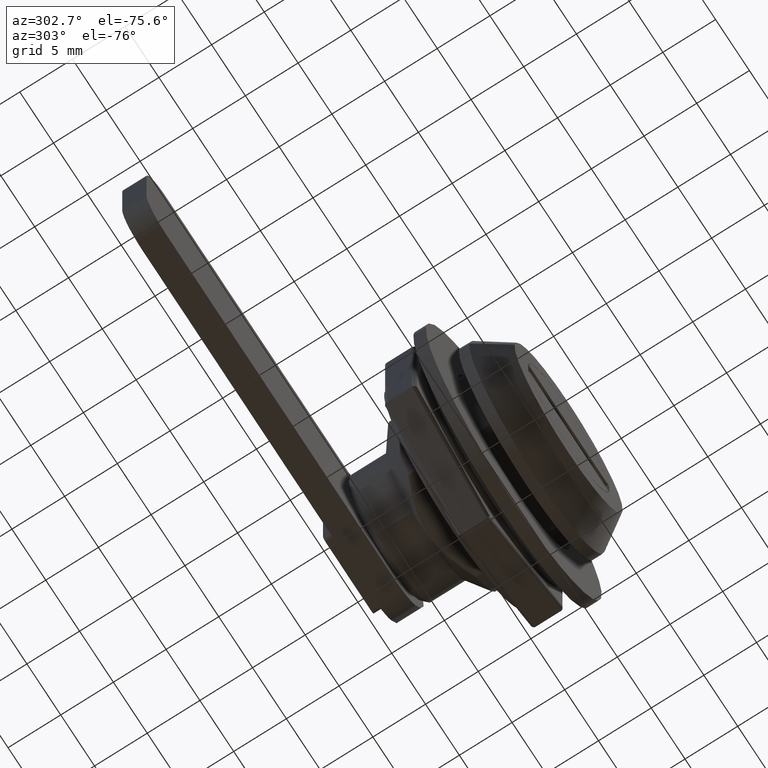
[diagram: clean part render]
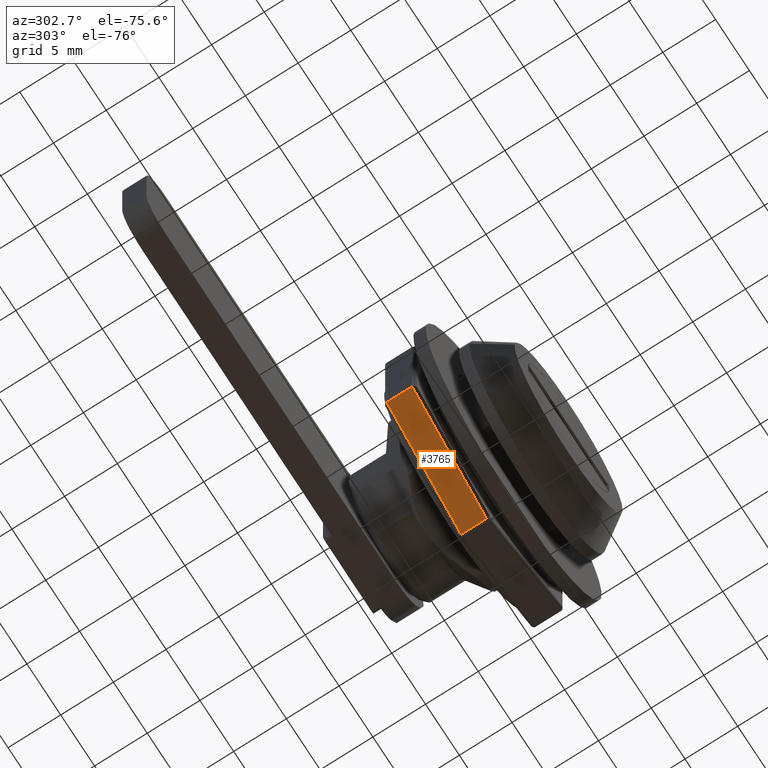
[diagram: same view with one face highlighted and labeled with its STEP entity id]
A machine part, auxiliary view. The second image highlights one B-rep face of the part: STEP entity #3765.
In plain terms, the highlighted face is a freeform B-spline surface patch.
Its self-contained STEP definition (entity closure, byte-faithful):
#3211=CARTESIAN_POINT('',(-11.0,7.800000000000000,-6.350853000000000));
#3212=VERTEX_POINT('',#3211);
#3257=CARTESIAN_POINT('',(0.000000033700644,7.800000000000000,-12.701705941628740));
#3258=VERTEX_POINT('',#3257);
#3282=CARTESIAN_POINT('',(0.000000033700644,7.800000000000000,-12.701705941628740));
#3283=CARTESIAN_POINT('',(-11.0,7.800000000000000,-6.350853000000000));
#3284=QUASI_UNIFORM_CURVE('',1,(#3282,#3283),.UNSPECIFIED.,.F.,.U.);
#3285=EDGE_CURVE('',#3258,#3212,#3284,.T.);
#3537=CARTESIAN_POINT('',(-11.0,10.199999999999999,-6.350853000000000));
#3538=VERTEX_POINT('',#3537);
#3627=CARTESIAN_POINT('',(0.000000033700644,10.199999999999999,-12.701705941628740));
#3628=VERTEX_POINT('',#3627);
#3642=CARTESIAN_POINT('',(-11.0,10.199999999999999,-6.350853000000000));
#3643=CARTESIAN_POINT('',(0.000000033700644,10.199999999999999,-12.701705941628740));
#3644=QUASI_UNIFORM_CURVE('',1,(#3642,#3643),.UNSPECIFIED.,.F.,.U.);
#3645=EDGE_CURVE('',#3538,#3628,#3644,.T.);
#3741=CARTESIAN_POINT('',(-11.0,7.800000000000000,-6.350853000000000));
#3742=CARTESIAN_POINT('',(-11.0,10.199999999999999,-6.350853000000000));
#3743=QUASI_UNIFORM_CURVE('',1,(#3741,#3742),.UNSPECIFIED.,.F.,.U.);
#3744=EDGE_CURVE('',#3212,#3538,#3743,.T.);
#3750=CARTESIAN_POINT('',(-11.549449962671190,7.680120215991495,-6.033627877231345));
#3751=CARTESIAN_POINT('',(0.549450308265173,7.680120215991495,-13.018931205554891));
#3752=CARTESIAN_POINT('',(-11.549449962671190,10.319879869839200,-6.033627877231345));
#3753=CARTESIAN_POINT('',(0.549450308265173,10.319879869839200,-13.018931205554891));
#3754=B_SPLINE_SURFACE_WITH_KNOTS('',1,1,((#3750,#3752),(#3751,#3753)),.UNSPECIFIED.,.F.,.F.,.U.,(2,2),(2,2),(0.0,13.970606656647091),(0.0,2.639759653847699),.UNSPECIFIED.);
#3755=ORIENTED_EDGE('',*,*,#3744,.T.);
#3756=ORIENTED_EDGE('',*,*,#3645,.T.);
#3757=CARTESIAN_POINT('',(0.000000033700644,7.800000000000000,-12.701705941628740));
#3758=CARTESIAN_POINT('',(0.000000033700644,10.199999999999999,-12.701705941628740));
#3759=QUASI_UNIFORM_CURVE('',1,(#3757,#3758),.UNSPECIFIED.,.F.,.U.);
#3760=EDGE_CURVE('',#3258,#3628,#3759,.T.);
#3761=ORIENTED_EDGE('',*,*,#3760,.F.);
#3762=ORIENTED_EDGE('',*,*,#3285,.T.);
#3763=EDGE_LOOP('',(#3755,#3756,#3761,#3762));
#3764=FACE_OUTER_BOUND('',#3763,.T.);
#3765=ADVANCED_FACE('',(#3764),#3754,.F.);